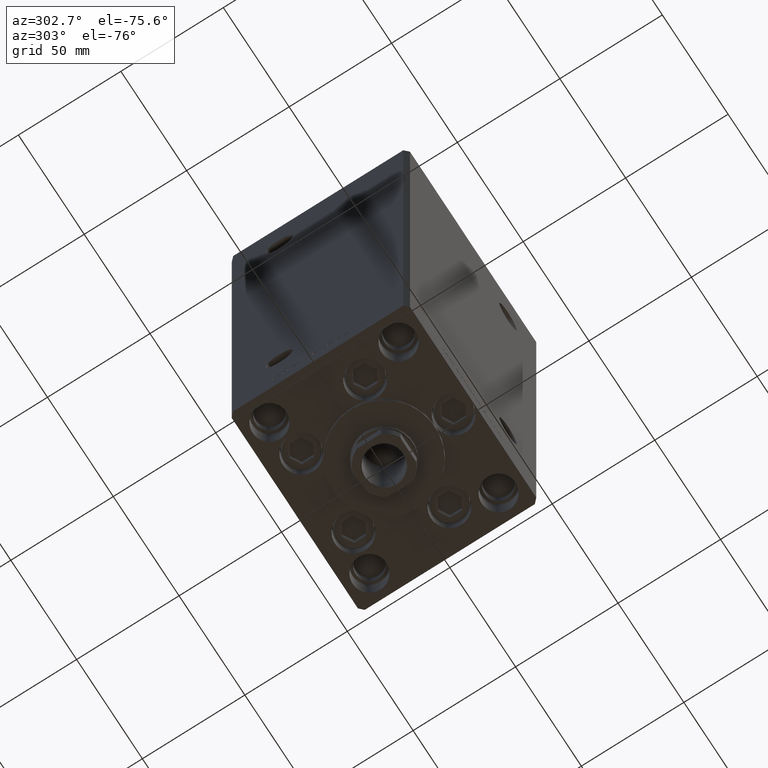
[diagram: clean part render]
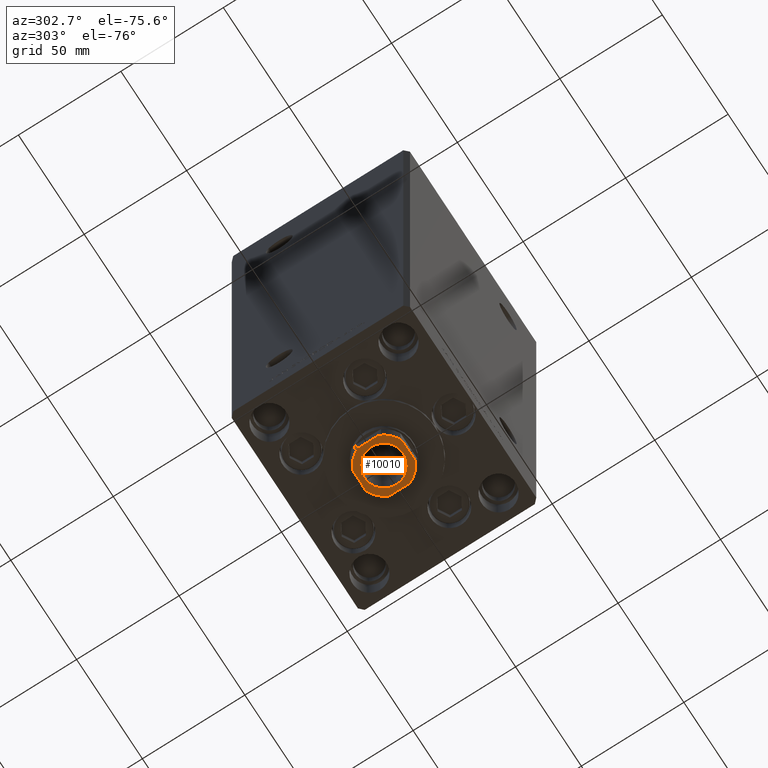
[diagram: same view with one face highlighted and labeled with its STEP entity id]
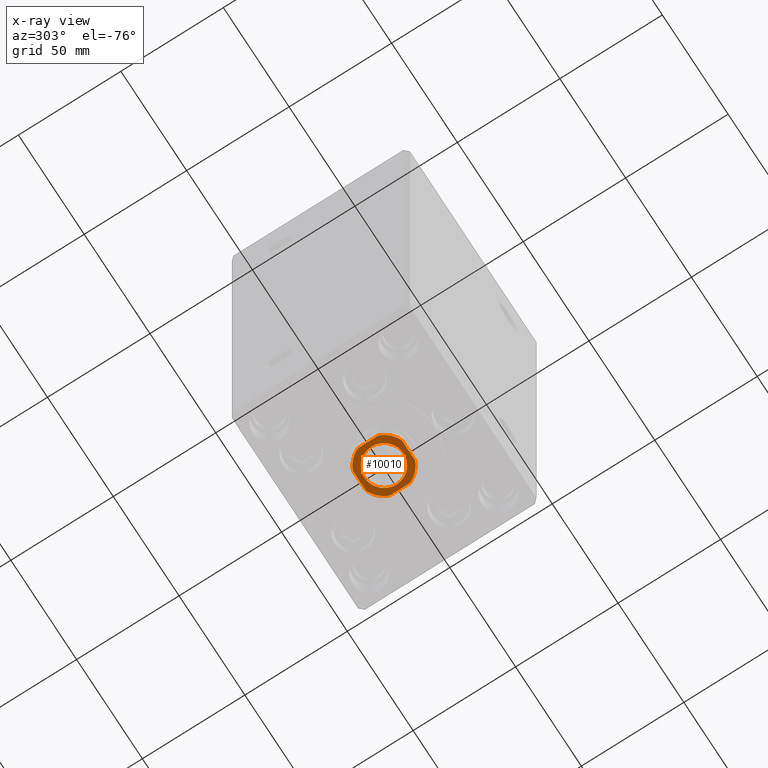
[diagram: x-ray of the same camera — body ghosted, the highlighted face saturated]
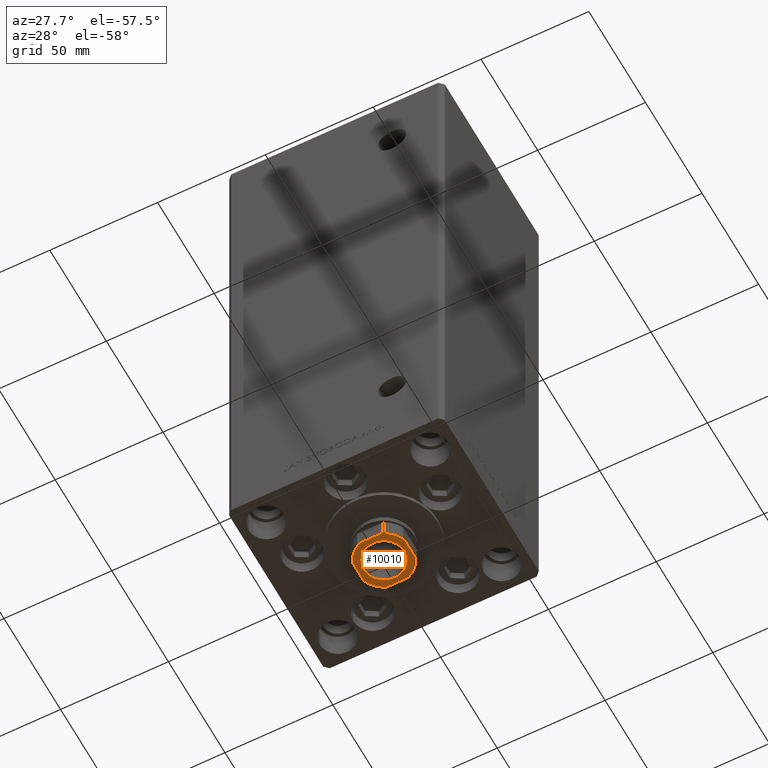
[diagram: same view with one face highlighted and labeled with its STEP entity id]
A machine part, auxiliary view. The second image highlights one B-rep face of the part: STEP entity #10010.
The next image is the same camera in x-ray: the body ghosted, the highlighted face saturated — about 0% of this face is hidden behind the body in this view.
A second angle (auxiliary view) of the same face is appended — the face is thin or edge-on in the first view.
In plain terms, the highlighted planar face has unit normal (0, 0, -1).
Its self-contained STEP definition (entity closure, byte-faithful):
#347 = CARTESIAN_POINT ( 'NONE',  ( 0.000000000000000000, 0.000000000000000000, 235.2500000000000284 ) ) ;
#600 = DIRECTION ( 'NONE',  ( 1.000000000000000000, 0.000000000000000000, 0.000000000000000000 ) ) ;
#1074 = EDGE_CURVE ( 'NONE', #24149, #10741, #34969, .T. ) ;
#1189 = EDGE_CURVE ( 'NONE', #26385, #7523, #32313, .T. ) ;
#2932 = DIRECTION ( 'NONE',  ( 1.000000000000000000, 0.000000000000000000, 0.000000000000000000 ) ) ;
#2964 = DIRECTION ( 'NONE',  ( 1.000000000000000000, 0.000000000000000000, 0.000000000000000000 ) ) ;
#3725 = CIRCLE ( 'NONE', #19872, 13.00000000000000000 ) ;
#3815 = VECTOR ( 'NONE', #35845, 1000.000000000000000 ) ;
#4006 = CARTESIAN_POINT ( 'NONE',  ( 12.00000000000000178, 4.999999999999994671, 235.2500000000000284 ) ) ;
#5939 = DIRECTION ( 'NONE',  ( -0.000000000000000000, 0.000000000000000000, 1.000000000000000000 ) ) ;
#6305 = PLANE ( 'NONE',  #49726 ) ;
#7523 = VERTEX_POINT ( 'NONE', #8570 ) ;
#8502 = DIRECTION ( 'NONE',  ( 7.228014483236695816E-17, -1.000000000000000000, 0.000000000000000000 ) ) ;
#8570 = CARTESIAN_POINT ( 'NONE',  ( -11.99999999999999822, -5.000000000000001776, 235.2500000000000284 ) ) ;
#8625 = ORIENTED_EDGE ( 'NONE', *, *, #1074, .T. ) ;
#9763 = DIRECTION ( 'NONE',  ( 1.000000000000000000, 0.000000000000000000, 0.000000000000000000 ) ) ;
#10010 = ADVANCED_FACE ( 'NONE', ( #10858, #17948 ), #6305, .T. ) ;
#10234 = CARTESIAN_POINT ( 'NONE',  ( -11.99999999999999822, 5.000000000000000888, 235.2500000000000284 ) ) ;
#10741 = VERTEX_POINT ( 'NONE', #28860 ) ;
#10858 = FACE_BOUND ( 'NONE', #37575, .T. ) ;
#10914 = VERTEX_POINT ( 'NONE', #45561 ) ;
#11291 = DIRECTION ( 'NONE',  ( -0.000000000000000000, 0.000000000000000000, 1.000000000000000000 ) ) ;
#11933 = VECTOR ( 'NONE', #28079, 1000.000000000000000 ) ;
#12339 = VECTOR ( 'NONE', #8502, 1000.000000000000000 ) ;
#12523 = EDGE_CURVE ( 'NONE', #12943, #16185, #3725, .T. ) ;
#12887 = CARTESIAN_POINT ( 'NONE',  ( 4.999999999999993783, -12.00000000000000178, 235.2500000000000284 ) ) ;
#12943 = VERTEX_POINT ( 'NONE', #12887 ) ;
#13165 = ORIENTED_EDGE ( 'NONE', *, *, #48212, .T. ) ;
#13846 = EDGE_LOOP ( 'NONE', ( #48712, #13165, #36269, #26677, #45161, #31905, #44875, #15030 ) ) ;
#13976 = AXIS2_PLACEMENT_3D ( 'NONE', #22204, #37673, #2964 ) ;
#14249 = LINE ( 'NONE', #41364, #30357 ) ;
#14992 = EDGE_CURVE ( 'NONE', #10914, #26385, #28857, .T. ) ;
#15030 = ORIENTED_EDGE ( 'NONE', *, *, #14992, .T. ) ;
#16185 = VERTEX_POINT ( 'NONE', #39085 ) ;
#16437 = LINE ( 'NONE', #35687, #11933 ) ;
#16812 = CIRCLE ( 'NONE', #18435, 13.00000000000000000 ) ;
#17509 = CARTESIAN_POINT ( 'NONE',  ( -4.999999999999992895, -12.00000000000000178, 235.2500000000000284 ) ) ;
#17551 = VERTEX_POINT ( 'NONE', #17509 ) ;
#17948 = FACE_OUTER_BOUND ( 'NONE', #13846, .T. ) ;
#18435 = AXIS2_PLACEMENT_3D ( 'NONE', #29009, #44473, #9763 ) ;
#18520 = AXIS2_PLACEMENT_3D ( 'NONE', #21429, #22171, #2932 ) ;
#19777 = EDGE_CURVE ( 'NONE', #10741, #24149, #20944, .T. ) ;
#19872 = AXIS2_PLACEMENT_3D ( 'NONE', #347, #39353, #600 ) ;
#20377 = LINE ( 'NONE', #34841, #3815 ) ;
#20944 = CIRCLE ( 'NONE', #18520, 9.550000000000002487 ) ;
#21429 = CARTESIAN_POINT ( 'NONE',  ( 0.000000000000000000, 0.000000000000000000, 235.2500000000000284 ) ) ;
#21939 = CARTESIAN_POINT ( 'NONE',  ( 0.000000000000000000, 0.000000000000000000, 235.2500000000000284 ) ) ;
#22171 = DIRECTION ( 'NONE',  ( 0.000000000000000000, -0.000000000000000000, -1.000000000000000000 ) ) ;
#22204 = CARTESIAN_POINT ( 'NONE',  ( 0.000000000000000000, 0.000000000000000000, 235.2500000000000284 ) ) ;
#24016 = AXIS2_PLACEMENT_3D ( 'NONE', #21939, #11291, #26728 ) ;
#24149 = VERTEX_POINT ( 'NONE', #31932 ) ;
#25436 = CARTESIAN_POINT ( 'NONE',  ( 0.000000000000000000, 0.000000000000000000, 235.2500000000000284 ) ) ;
#26385 = VERTEX_POINT ( 'NONE', #10234 ) ;
#26677 = ORIENTED_EDGE ( 'NONE', *, *, #12523, .T. ) ;
#26728 = DIRECTION ( 'NONE',  ( 1.000000000000000000, 0.000000000000000000, 0.000000000000000000 ) ) ;
#28079 = DIRECTION ( 'NONE',  ( -1.000000000000000000, -7.228014483236695816E-17, -0.000000000000000000 ) ) ;
#28857 = CIRCLE ( 'NONE', #42639, 13.00000000000000000 ) ;
#28860 = CARTESIAN_POINT ( 'NONE',  ( 9.550000000000002487, 0.000000000000000000, 235.2500000000000284 ) ) ;
#29009 = CARTESIAN_POINT ( 'NONE',  ( 0.000000000000000000, 0.000000000000000000, 235.2500000000000284 ) ) ;
#30357 = VECTOR ( 'NONE', #49208, 1000.000000000000000 ) ;
#31905 = ORIENTED_EDGE ( 'NONE', *, *, #49554, .T. ) ;
#31932 = CARTESIAN_POINT ( 'NONE',  ( -9.550000000000002487, 1.169537693185722755E-15, 235.2500000000000284 ) ) ;
#32313 = LINE ( 'NONE', #32816, #12339 ) ;
#32816 = CARTESIAN_POINT ( 'NONE',  ( -11.99999999999999822, 11.99999999999999822, 235.2500000000000284 ) ) ;
#33306 = CARTESIAN_POINT ( 'NONE',  ( 5.000000000000002665, 12.00000000000000000, 235.2500000000000284 ) ) ;
#33400 = DIRECTION ( 'NONE',  ( -0.000000000000000000, 0.000000000000000000, 1.000000000000000000 ) ) ;
#34841 = CARTESIAN_POINT ( 'NONE',  ( 12.00000000000000000, 12.00000000000000000, 235.2500000000000284 ) ) ;
#34969 = CIRCLE ( 'NONE', #13976, 9.550000000000002487 ) ;
#35687 = CARTESIAN_POINT ( 'NONE',  ( -11.99999999999999822, 11.99999999999999822, 235.2500000000000284 ) ) ;
#35845 = DIRECTION ( 'NONE',  ( -1.445602896647339163E-16, 1.000000000000000000, -0.000000000000000000 ) ) ;
#36269 = ORIENTED_EDGE ( 'NONE', *, *, #40137, .T. ) ;
#37575 = EDGE_LOOP ( 'NONE', ( #46623, #8625 ) ) ;
#37673 = DIRECTION ( 'NONE',  ( 0.000000000000000000, -0.000000000000000000, -1.000000000000000000 ) ) ;
#37713 = CARTESIAN_POINT ( 'NONE',  ( 0.000000000000000000, 0.000000000000000000, 235.2500000000000284 ) ) ;
#38450 = VERTEX_POINT ( 'NONE', #4006 ) ;
#39085 = CARTESIAN_POINT ( 'NONE',  ( 12.00000000000000178, -4.999999999999990230, 235.2500000000000284 ) ) ;
#39353 = DIRECTION ( 'NONE',  ( -0.000000000000000000, 0.000000000000000000, 1.000000000000000000 ) ) ;
#39854 = VERTEX_POINT ( 'NONE', #33306 ) ;
#40137 = EDGE_CURVE ( 'NONE', #17551, #12943, #14249, .T. ) ;
#41364 = CARTESIAN_POINT ( 'NONE',  ( -11.99999999999999645, -12.00000000000000178, 235.2500000000000284 ) ) ;
#41951 = CIRCLE ( 'NONE', #24016, 13.00000000000000000 ) ;
#42639 = AXIS2_PLACEMENT_3D ( 'NONE', #25436, #5939, #48747 ) ;
#44473 = DIRECTION ( 'NONE',  ( -0.000000000000000000, 0.000000000000000000, 1.000000000000000000 ) ) ;
#44875 = ORIENTED_EDGE ( 'NONE', *, *, #46193, .T. ) ;
#45161 = ORIENTED_EDGE ( 'NONE', *, *, #49446, .T. ) ;
#45561 = CARTESIAN_POINT ( 'NONE',  ( -5.000000000000001776, 11.99999999999999822, 235.2500000000000284 ) ) ;
#46193 = EDGE_CURVE ( 'NONE', #39854, #10914, #16437, .T. ) ;
#46623 = ORIENTED_EDGE ( 'NONE', *, *, #19777, .T. ) ;
#48212 = EDGE_CURVE ( 'NONE', #7523, #17551, #41951, .T. ) ;
#48712 = ORIENTED_EDGE ( 'NONE', *, *, #1189, .T. ) ;
#48747 = DIRECTION ( 'NONE',  ( 1.000000000000000000, 0.000000000000000000, 0.000000000000000000 ) ) ;
#48862 = DIRECTION ( 'NONE',  ( 1.000000000000000000, 0.000000000000000000, 0.000000000000000000 ) ) ;
#49208 = DIRECTION ( 'NONE',  ( 1.000000000000000000, 7.228014483236695816E-17, 0.000000000000000000 ) ) ;
#49446 = EDGE_CURVE ( 'NONE', #16185, #38450, #20377, .T. ) ;
#49554 = EDGE_CURVE ( 'NONE', #38450, #39854, #16812, .T. ) ;
#49726 = AXIS2_PLACEMENT_3D ( 'NONE', #37713, #33400, #48862 ) ;